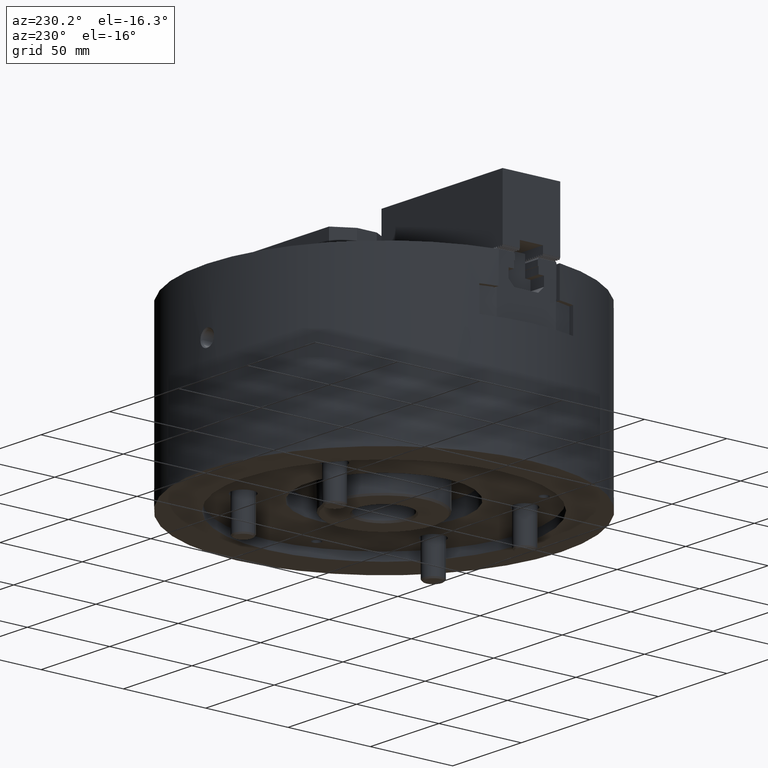
[diagram: clean part render]
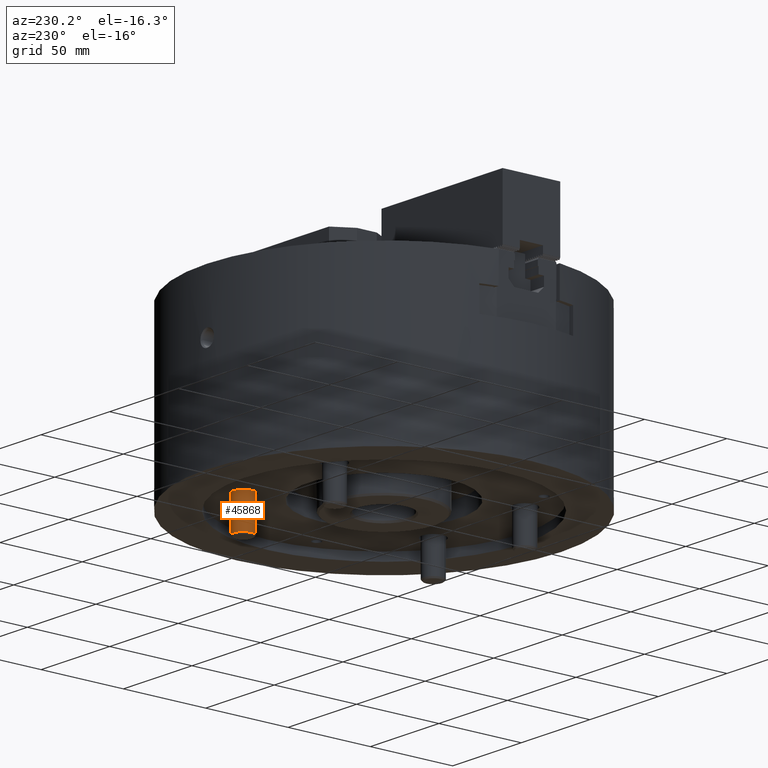
[diagram: same view with one face highlighted and labeled with its STEP entity id]
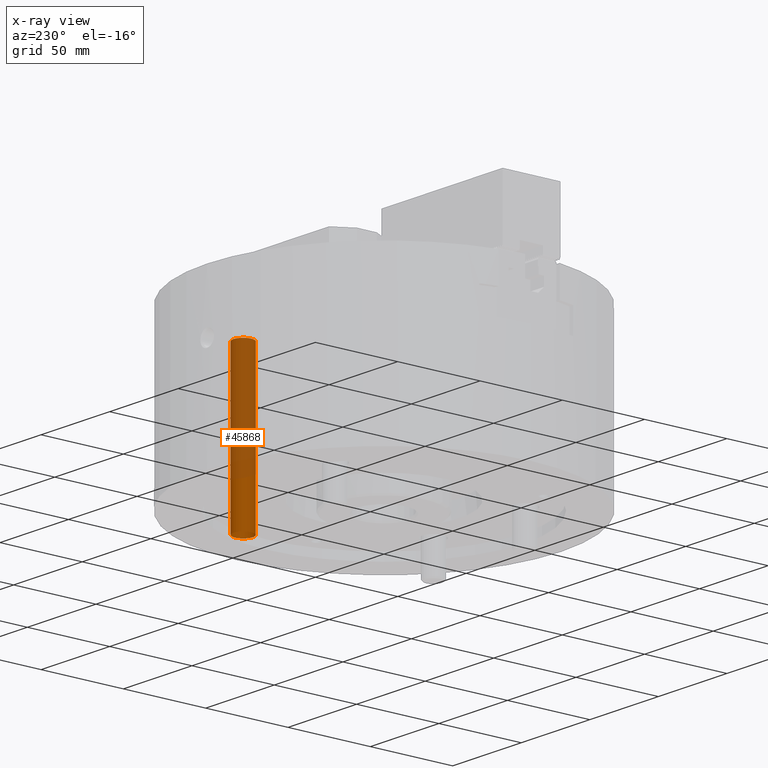
[diagram: x-ray of the same camera — body ghosted, the highlighted face saturated]
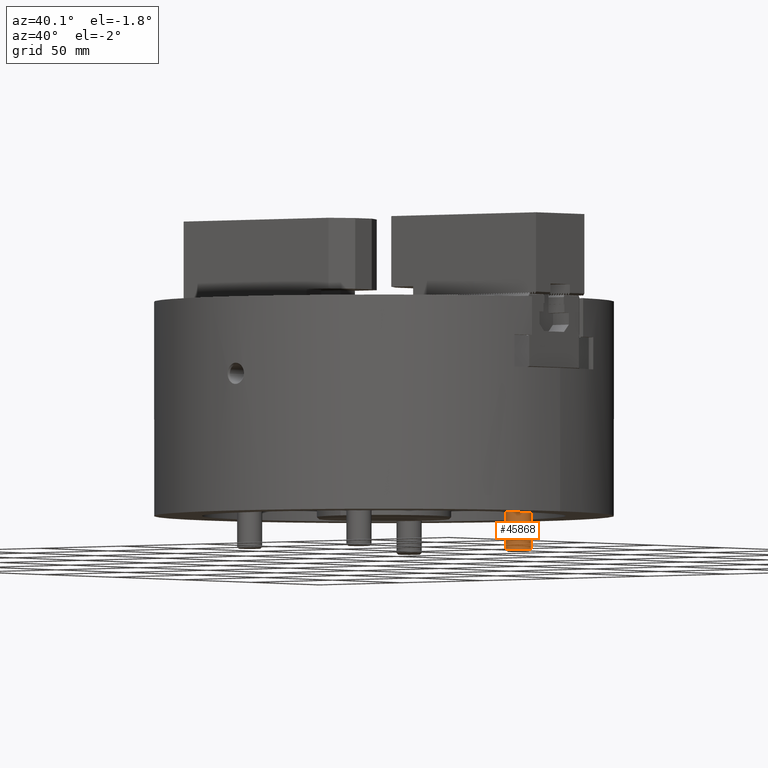
[diagram: same view with one face highlighted and labeled with its STEP entity id]
A machine part, auxiliary view. The second image highlights one B-rep face of the part: STEP entity #45868.
The next image is the same camera in x-ray: the body ghosted, the highlighted face saturated — about 70% of this face is hidden behind the body in this view.
A second angle (auxiliary view) of the same face is appended — the face is thin or edge-on in the first view.
In plain terms, the highlighted cylindrical surface (bore or boss wall) has radius 5.8505 mm, axis along (0, 0, -1).
Its self-contained STEP definition (entity closure, byte-faithful):
#1117=CYLINDRICAL_SURFACE('',#49010,5.8505);
#1839=CIRCLE('',#49009,5.8505);
#1840=CIRCLE('',#49011,5.8505);
#15256=ORIENTED_EDGE('',*,*,#22098,.T.);
#15257=ORIENTED_EDGE('',*,*,#22097,.T.);
#22097=EDGE_CURVE('',#26368,#26368,#1839,.T.);
#22098=EDGE_CURVE('',#26369,#26369,#1840,.T.);
#26368=VERTEX_POINT('',#76480);
#26369=VERTEX_POINT('',#76483);
#39777=EDGE_LOOP('',(#15256));
#39778=EDGE_LOOP('',(#15257));
#42176=FACE_BOUND('',#39777,.T.);
#42177=FACE_BOUND('',#39778,.T.);
#45868=ADVANCED_FACE('',(#42176,#42177),#1117,.T.);
#49009=AXIS2_PLACEMENT_3D('',#76479,#60730,#60731);
#49010=AXIS2_PLACEMENT_3D('',#76481,#60732,#60733);
#49011=AXIS2_PLACEMENT_3D('',#76482,#60734,#60735);
#60730=DIRECTION('',(0.,0.,1.));
#60731=DIRECTION('',(-0.923728021347068,-0.383049008063238,0.));
#60732=DIRECTION('',(0.,0.,-1.));
#60733=DIRECTION('',(-0.923728021347068,-0.383049008063238,0.));
#60734=DIRECTION('',(0.,0.,-1.));
#60735=DIRECTION('',(-0.923728021347068,-0.383049008063238,0.));
#76479=CARTESIAN_POINT('',(33.35,57.763894432422,-115.1855));
#76480=CARTESIAN_POINT('',(27.945729211109,55.522866210748,-115.1855));
#76481=CARTESIAN_POINT('',(33.35,57.763894432422,-20.9999999999998));
#76482=CARTESIAN_POINT('',(33.35,57.763894432422,-20.9999999999998));
#76483=CARTESIAN_POINT('',(27.945729211109,55.522866210748,-20.9999999999998));